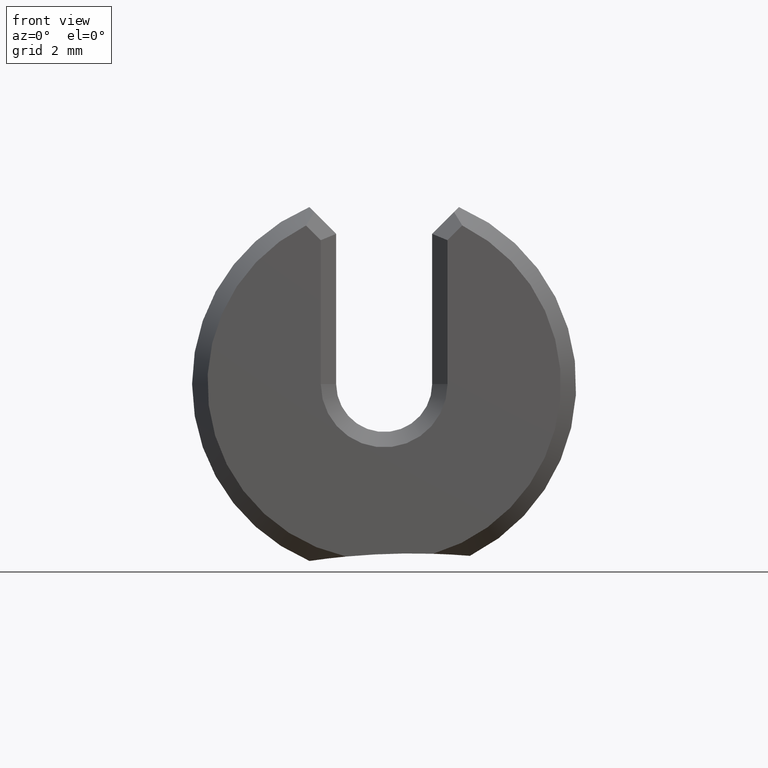
[diagram: clean part render]
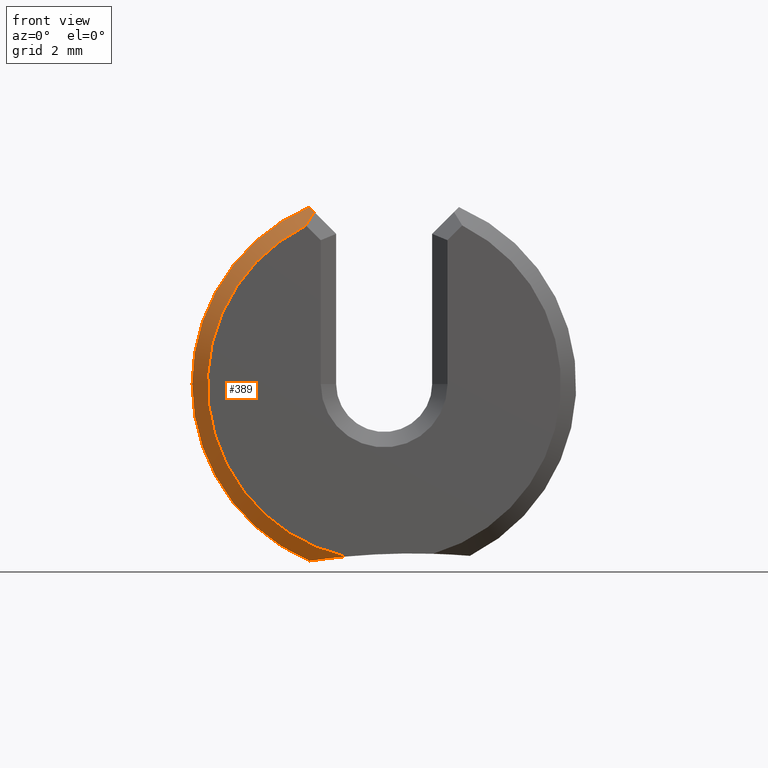
[diagram: same view with one face highlighted and labeled with its STEP entity id]
A machine part, front view. The second image highlights one B-rep face of the part: STEP entity #389.
In plain terms, the highlighted conical surface has half-angle 30 deg.
Its self-contained STEP definition (entity closure, byte-faithful):
#36 = DIRECTION ( 'NONE',  ( -0.0000000000000000000, 1.000000000000000000, -0.0000000000000000000 ) ) ;
#37 = CARTESIAN_POINT ( 'NONE',  ( 0.0000000000000000000, 0.02598076211353325300, 0.0000000000000000000 ) ) ;
#74 = ORIENTED_EDGE ( 'NONE', *, *, #571, .F. ) ;
#76 = ORIENTED_EDGE ( 'NONE', *, *, #537, .T. ) ;
#106 = ORIENTED_EDGE ( 'NONE', *, *, #595, .F. ) ;
#131 = CONICAL_SURFACE ( 'NONE', #523, 0.1875000000000000300, 0.5235987755983005900 ) ;
#158 = CARTESIAN_POINT ( 'NONE',  ( -0.06979336728324592200, 0.01865716359912524000, 0.1694644616367184900 ) ) ;
#159 = CARTESIAN_POINT ( 'NONE',  ( -0.06817266041546231300, 0.01499999999999999400, 0.1678437547689348700 ) ) ;
#203 = DIRECTION ( 'NONE',  ( 0.0000000000000000000, 0.0000000000000000000, 1.000000000000000000 ) ) ;
#205 = DIRECTION ( 'NONE',  ( -0.0000000000000000000, -1.000000000000000000, -0.0000000000000000000 ) ) ;
#207 = CARTESIAN_POINT ( 'NONE',  ( 0.0000000000000000000, 0.0000000000000000000, 0.0000000000000000000 ) ) ;
#248 = AXIS2_PLACEMENT_3D ( 'NONE', #207, #205, #203 ) ;
#263 = AXIS2_PLACEMENT_3D ( 'NONE', #37, #36, #745 ) ;
#268 = CARTESIAN_POINT ( 'NONE',  ( -0.06817266041546231300, 0.01499999999999999400, 0.1678437547689348700 ) ) ;
#278 = CARTESIAN_POINT ( 'NONE',  ( -0.03721179448869235700, 0.0000000000000000000, -0.1684385120776459300 ) ) ;
#283 = CARTESIAN_POINT ( 'NONE',  ( -0.07626657323412496000, -6.535245526497276000E-018, 0.1547244641520008900 ) ) ;
#284 = CARTESIAN_POINT ( 'NONE',  ( -0.07141045252930584800, 0.02231754105395846200, 0.1710815468827783800 ) ) ;
#287 = CARTESIAN_POINT ( 'NONE',  ( -0.07302430484008531900, 0.02598076211353332600, 0.1726953991935578900 ) ) ;
#291 = CARTESIAN_POINT ( 'NONE',  ( -0.07291662851555622000, 0.02598076211353322900, -0.1727408906018617600 ) ) ;
#293 = CARTESIAN_POINT ( 'NONE',  ( -0.06196994513928609500, 0.01603738463539981800, -0.1711303458099426300 ) ) ;
#297 = CARTESIAN_POINT ( 'NONE',  ( -0.03721179448869235700, 0.0000000000000000000, -0.1684385120776459300 ) ) ;
#298 = CARTESIAN_POINT ( 'NONE',  ( -0.05034751709205492100, 0.006997172278329973100, -0.1696737700744136200 ) ) ;
#312 = CARTESIAN_POINT ( 'NONE',  ( -0.07626657323412496000, -6.535245526497276000E-018, 0.1547244641520008900 ) ) ;
#342 = CARTESIAN_POINT ( 'NONE',  ( -0.07302430484008531900, 0.02598076211353332600, 0.1726953991935578900 ) ) ;
#346 = CARTESIAN_POINT ( 'NONE',  ( -0.07291662851555622000, 0.02598076211353322900, -0.1727408906018617600 ) ) ;
#389 = ADVANCED_FACE ( 'NONE', ( #402 ), #131, .T. ) ;
#402 = FACE_OUTER_BOUND ( 'NONE', #725, .T. ) ;
#424 = VERTEX_POINT ( 'NONE', #346 ) ;
#429 = VERTEX_POINT ( 'NONE', #342 ) ;
#442 = VERTEX_POINT ( 'NONE', #283 ) ;
#446 = VERTEX_POINT ( 'NONE', #278 ) ;
#455 = VERTEX_POINT ( 'NONE', #268 ) ;
#484 = B_SPLINE_CURVE_WITH_KNOTS ( 'NONE', 3,
 ( #287, #284, #158, #159 ),
 .UNSPECIFIED., .F., .F.,
 ( 4, 4 ),
 ( 2.214003487560247600E-018, 0.0003288818484658775200 ),
 .UNSPECIFIED. ) ;
#488 = B_SPLINE_CURVE_WITH_KNOTS ( 'NONE', 3,
 ( #297, #298, #293, #291 ),
 .UNSPECIFIED., .F., .F.,
 ( 4, 4 ),
 ( 1.190844237071074500E-019, 0.001126897452803783200 ),
 .UNSPECIFIED. ) ;
#499 =( BOUNDED_CURVE ( )  B_SPLINE_CURVE ( 3, ( #312, #551, #550, #549 ),
 .UNSPECIFIED., .F., .T. ) 
 B_SPLINE_CURVE_WITH_KNOTS ( ( 4, 4 ),
 ( 4.392930827389104600, 4.467073425487170000 ),
 .UNSPECIFIED. ) 
 CURVE ( )  GEOMETRIC_REPRESENTATION_ITEM ( )  RATIONAL_B_SPLINE_CURVE ( ( 1.000000000000000000, 0.9995419587223373100, 0.9995419587223373100, 1.000000000000000000 ) ) 
 REPRESENTATION_ITEM ( '' )  );
#523 = AXIS2_PLACEMENT_3D ( 'NONE', #670, #669, #671 ) ;
#537 = EDGE_CURVE ( 'NONE', #442, #455, #499, .T. ) ;
#549 = CARTESIAN_POINT ( 'NONE',  ( -0.06817266041546231300, 0.01499999999999999400, 0.1678437547689348700 ) ) ;
#550 = CARTESIAN_POINT ( 'NONE',  ( -0.07101508980858682600, 0.009947353912967775100, 0.1635406635399070100 ) ) ;
#551 = CARTESIAN_POINT ( 'NONE',  ( -0.07371429709649593400, 0.004945062657089674400, 0.1591655626908128100 ) ) ;
#555 = EDGE_CURVE ( 'NONE', #424, #429, #605, .T. ) ;
#571 = EDGE_CURVE ( 'NONE', #442, #446, #736, .T. ) ;
#592 = EDGE_CURVE ( 'NONE', #446, #424, #488, .T. ) ;
#595 = EDGE_CURVE ( 'NONE', #429, #455, #484, .T. ) ;
#605 = CIRCLE ( 'NONE', #263, 0.1875000000000000300 ) ;
#669 = DIRECTION ( 'NONE',  ( -0.0000000000000000000, 1.000000000000000000, -0.0000000000000000000 ) ) ;
#670 = CARTESIAN_POINT ( 'NONE',  ( 0.0000000000000000000, 0.02598076211353325300, 0.0000000000000000000 ) ) ;
#671 = DIRECTION ( 'NONE',  ( 0.0000000000000000000, 0.0000000000000000000, 1.000000000000000000 ) ) ;
#685 = ORIENTED_EDGE ( 'NONE', *, *, #592, .F. ) ;
#687 = ORIENTED_EDGE ( 'NONE', *, *, #555, .F. ) ;
#725 = EDGE_LOOP ( 'NONE', ( #74, #76, #106, #687, #685 ) ) ;
#736 = CIRCLE ( 'NONE', #248, 0.1724999999999999000 ) ;
#745 = DIRECTION ( 'NONE',  ( 0.0000000000000000000, 0.0000000000000000000, 1.000000000000000000 ) ) ;